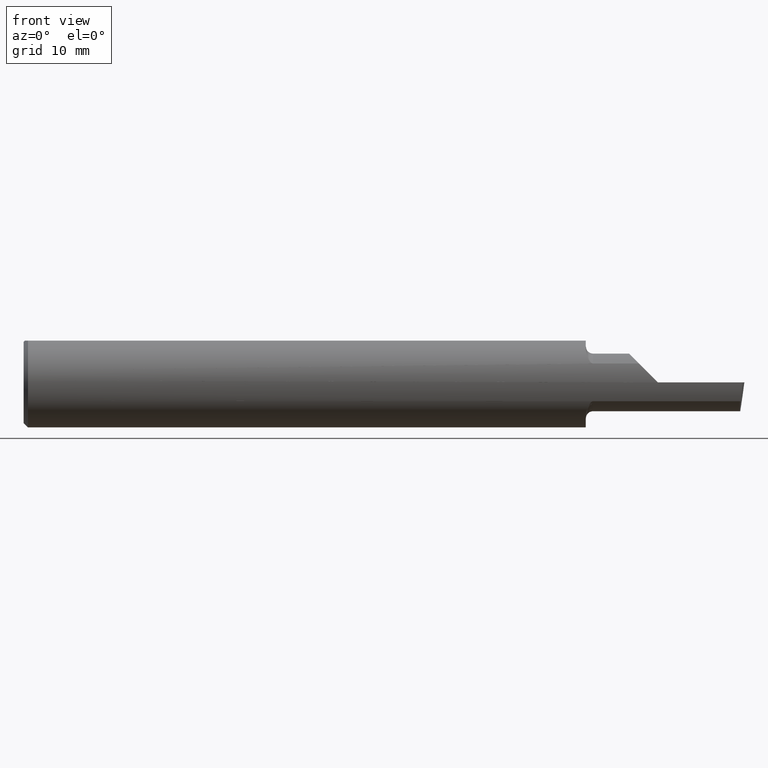
[diagram: clean part render]
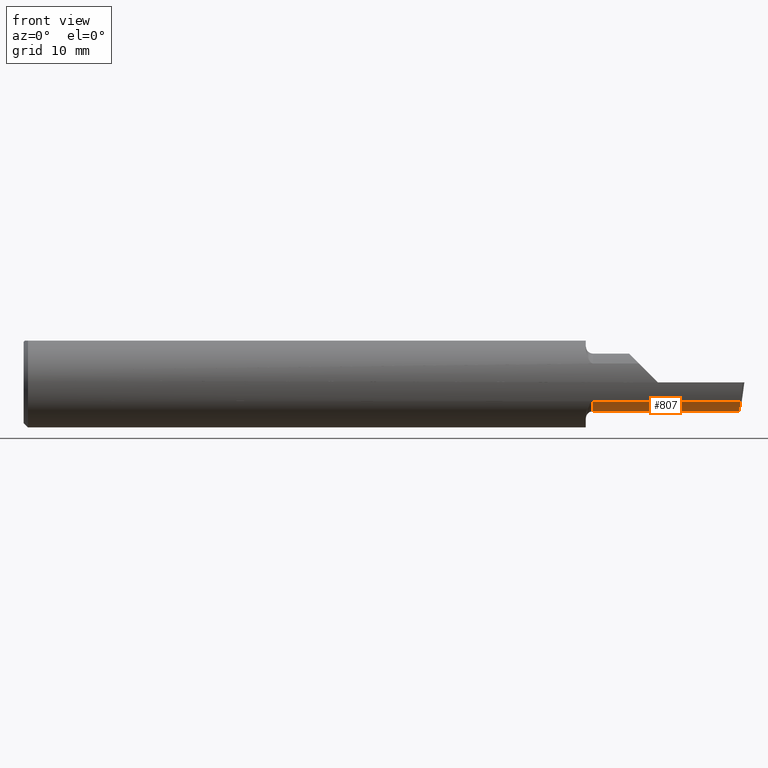
[diagram: same view with one face highlighted and labeled with its STEP entity id]
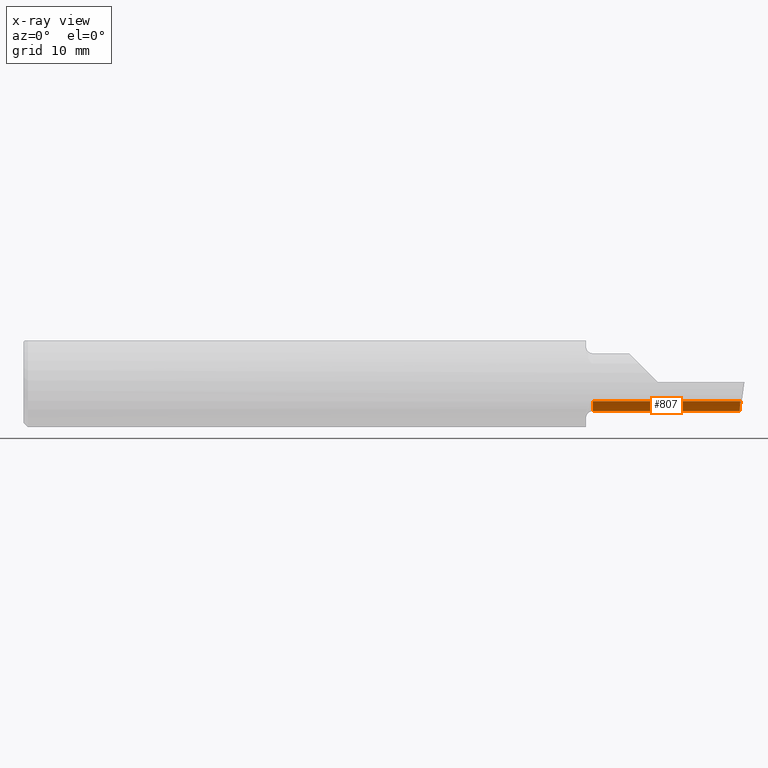
[diagram: x-ray of the same camera — body ghosted, the highlighted face saturated]
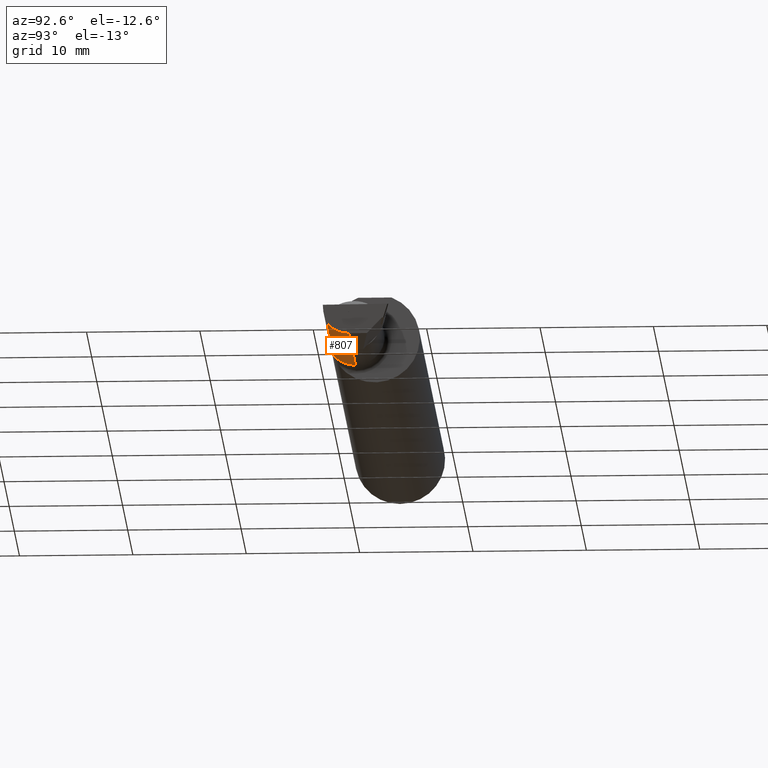
[diagram: same view with one face highlighted and labeled with its STEP entity id]
A machine part, front view. The second image highlights one B-rep face of the part: STEP entity #807.
The next image is the same camera in x-ray: the body ghosted, the highlighted face saturated — about 0% of this face is hidden behind the body in this view.
A second angle (auxiliary view) of the same face is appended — the face is thin or edge-on in the first view.
In plain terms, the highlighted cylindrical surface (edge-blend (fillet) strip) has radius 2.54 mm, axis along (-1, -0, -0).
Its self-contained STEP definition (entity closure, byte-faithful):
#13 = LINE ( 'NONE', #891, #1071 ) ;
#24 = DIRECTION ( 'NONE',  ( 1.000000000000000000, 0.000000000000000000, 0.000000000000000000 ) ) ;
#25 = VERTEX_POINT ( 'NONE', #723 ) ;
#40 = CARTESIAN_POINT ( 'NONE',  ( 53.08599999999999142, -3.599887049924355154, -1.661794942640913098 ) ) ;
#45 = LINE ( 'NONE', #40, #854 ) ;
#50 = EDGE_CURVE ( 'NONE', #25, #1041, #708, .T. ) ;
#83 = CARTESIAN_POINT ( 'NONE',  ( 50.16499999999999204, -3.599887049924355154, -1.661794942640913098 ) ) ;
#104 = LINE ( 'NONE', #803, #873 ) ;
#174 = CARTESIAN_POINT ( 'NONE',  ( 56.64199999999999591, -1.678939999999999433, -2.540000000000000480 ) ) ;
#218 = DIRECTION ( 'NONE',  ( -1.000000000000000000, -0.000000000000000000, -0.000000000000000000 ) ) ;
#243 = ORIENTED_EDGE ( 'NONE', *, *, #50, .F. ) ;
#332 = CARTESIAN_POINT ( 'NONE',  ( 63.07588300934818903, -2.428222866824017778, -2.540000000000001368 ) ) ;
#361 = DIRECTION ( 'NONE',  ( -1.000000000000000000, -0.000000000000000000, -0.000000000000000000 ) ) ;
#370 = EDGE_CURVE ( 'NONE', #621, #443, #1115, .T. ) ;
#390 = EDGE_CURVE ( 'NONE', #1041, #692, #104, .T. ) ;
#399 = DIRECTION ( 'NONE',  ( -1.000000000000000000, -0.000000000000000000, -0.000000000000000000 ) ) ;
#428 = CARTESIAN_POINT ( 'NONE',  ( 50.16499999999999204, -1.678939999999999211, -2.540000000000000036 ) ) ;
#436 = CARTESIAN_POINT ( 'NONE',  ( 63.09565101948187760, -1.678939999999999433, -2.540000000000000480 ) ) ;
#443 = VERTEX_POINT ( 'NONE', #428 ) ;
#458 = EDGE_CURVE ( 'NONE', #25, #621, #45, .T. ) ;
#528 = EDGE_LOOP ( 'NONE', ( #1162, #975, #243, #920, #700 ) ) ;
#583 = FACE_OUTER_BOUND ( 'NONE', #528, .T. ) ;
#588 = DIRECTION ( 'NONE',  ( 0.000000000000000000, 0.000000000000000000, -1.000000000000000000 ) ) ;
#621 = VERTEX_POINT ( 'NONE', #83 ) ;
#645 = CARTESIAN_POINT ( 'NONE',  ( 63.15280151554064503, -3.599887049924355598, -1.661794942640913542 ) ) ;
#680 = DIRECTION ( 'NONE',  ( 0.000000000000000000, 0.000000000000000000, 1.000000000000000000 ) ) ;
#692 = VERTEX_POINT ( 'NONE', #174 ) ;
#700 = ORIENTED_EDGE ( 'NONE', *, *, #370, .T. ) ;
#708 =( BOUNDED_CURVE ( )  B_SPLINE_CURVE ( 3, ( #645, #915, #332, #436 ),
 .UNSPECIFIED., .F., .T. ) 
 B_SPLINE_CURVE_WITH_KNOTS ( ( 4, 4 ),
 ( 5.637230215764978070, 6.494836076230749988 ),
 .UNSPECIFIED. ) 
 CURVE ( )  GEOMETRIC_REPRESENTATION_ITEM ( )  RATIONAL_B_SPLINE_CURVE ( ( 1.000000000000000000, 0.9396427478180650050, 0.9396427478180650050, 1.000000000000000000 ) ) 
 REPRESENTATION_ITEM ( '' )  );
#723 = CARTESIAN_POINT ( 'NONE',  ( 63.15280151554064503, -3.599887049924355598, -1.661794942640913542 ) ) ;
#786 = CARTESIAN_POINT ( 'NONE',  ( 50.16499999999999204, -1.678939999999999433, 0.000000000000000000 ) ) ;
#792 = CYLINDRICAL_SURFACE ( 'NONE', #1202, 2.540000000000000036 ) ;
#803 = CARTESIAN_POINT ( 'NONE',  ( 63.50000000000004263, -1.678939999999999433, -2.540000000000000480 ) ) ;
#807 = ADVANCED_FACE ( 'NONE', ( #583 ), #792, .T. ) ;
#854 = VECTOR ( 'NONE', #361, 1000.000000000000000 ) ;
#865 = CARTESIAN_POINT ( 'NONE',  ( 49.53000000000000114, -1.678939999999999433, 0.000000000000000000 ) ) ;
#873 = VECTOR ( 'NONE', #1189, 1000.000000000000000 ) ;
#884 = EDGE_CURVE ( 'NONE', #692, #443, #13, .T. ) ;
#891 = CARTESIAN_POINT ( 'NONE',  ( 49.53000000000000114, -1.678939999999999211, -2.540000000000000036 ) ) ;
#898 = AXIS2_PLACEMENT_3D ( 'NONE', #786, #24, #588 ) ;
#915 = CARTESIAN_POINT ( 'NONE',  ( 63.09615684788646917, -3.109668751225286520, -2.228461364918260745 ) ) ;
#920 = ORIENTED_EDGE ( 'NONE', *, *, #458, .T. ) ;
#975 = ORIENTED_EDGE ( 'NONE', *, *, #390, .F. ) ;
#1041 = VERTEX_POINT ( 'NONE', #1104 ) ;
#1071 = VECTOR ( 'NONE', #399, 1000.000000000000000 ) ;
#1104 = CARTESIAN_POINT ( 'NONE',  ( 63.09565101948187760, -1.678939999999999433, -2.540000000000000480 ) ) ;
#1115 = CIRCLE ( 'NONE', #898, 2.540000000000000036 ) ;
#1162 = ORIENTED_EDGE ( 'NONE', *, *, #884, .F. ) ;
#1189 = DIRECTION ( 'NONE',  ( -1.000000000000000000, -0.000000000000000000, -0.000000000000000000 ) ) ;
#1202 = AXIS2_PLACEMENT_3D ( 'NONE', #865, #218, #680 ) ;